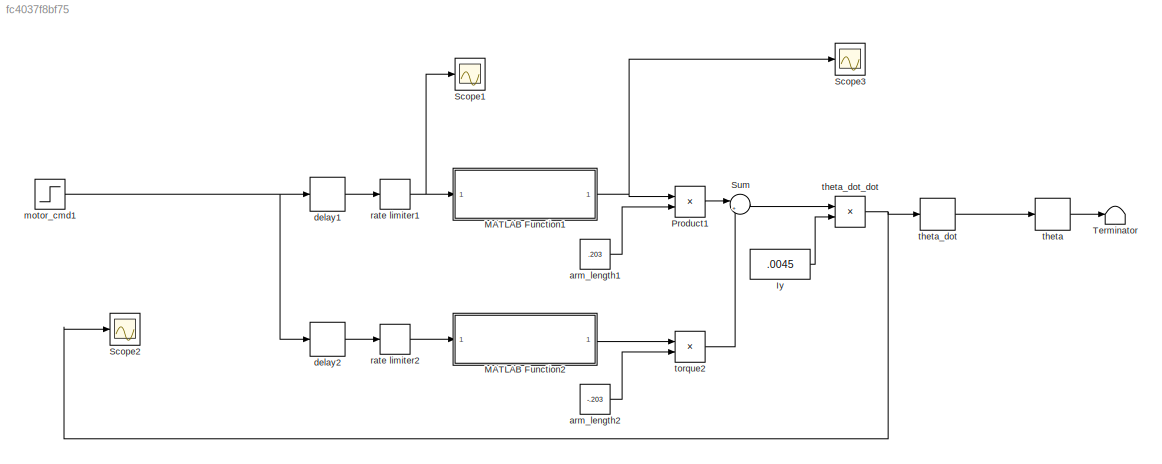
MODEL slx_fc4037f8bf75
KIND model
BLOCK [Constant] Iy
  Value = .0045
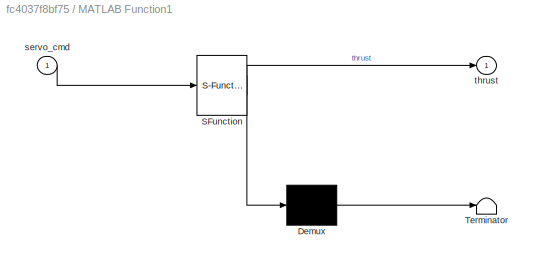
BLOCK [SubSystem] MATLAB Function1
  ErrorFcn = Stateflow.Translate.translate
  FunctionWithSeparateData = off
  MaskHideContents = off
  MinAlgLoopOccurrences = off
  Opaque = off
  PermitHierarchicalResolution = ExplicitOnly
  Ports = [1, 1]
  PropExecContextOutsideSubsystem = off
  RTWSystemCode = Auto
  RequestExecContextInheritance = off
  SFBlockType = MATLAB Function
  TreatAsAtomicUnit = on
BLOCK [Demux] MATLAB Function1/ Demux 
  Outputs = 1
  Ports = [1, 1]
BLOCK [S-Function] MATLAB Function1/ SFunction 
  EnableBusSupport = on
  FunctionName = sf_sfun
  PortCounts = [1 2]
  Ports = [1, 2]
  Tag = Stateflow S-Function quad_model_V1 1
BLOCK [Terminator] MATLAB Function1/ Terminator 
BLOCK [Inport] MATLAB Function1/servo_cmd
  IconDisplay = Port number
BLOCK [Outport] MATLAB Function1/thrust
  IconDisplay = Port number
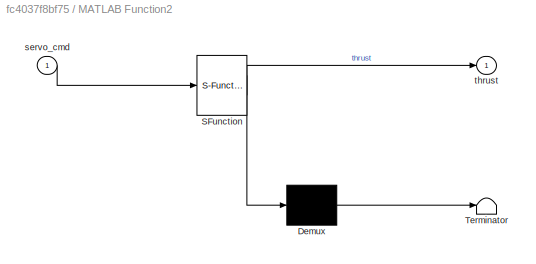
BLOCK [SubSystem] MATLAB Function2
  ErrorFcn = Stateflow.Translate.translate
  FunctionWithSeparateData = off
  MaskHideContents = off
  MinAlgLoopOccurrences = off
  Opaque = off
  PermitHierarchicalResolution = ExplicitOnly
  Ports = [1, 1]
  PropExecContextOutsideSubsystem = off
  RTWSystemCode = Auto
  RequestExecContextInheritance = off
  SFBlockType = MATLAB Function
  TreatAsAtomicUnit = on
BLOCK [Demux] MATLAB Function2/ Demux 
  Outputs = 1
  Ports = [1, 1]
BLOCK [S-Function] MATLAB Function2/ SFunction 
  EnableBusSupport = on
  FunctionName = sf_sfun
  PortCounts = [1 2]
  Ports = [1, 2]
  Tag = Stateflow S-Function quad_model_V1 2
BLOCK [Terminator] MATLAB Function2/ Terminator 
BLOCK [Inport] MATLAB Function2/servo_cmd
  IconDisplay = Port number
BLOCK [Outport] MATLAB Function2/thrust
  IconDisplay = Port number
BLOCK [Product] Product1
  InputSameDT = off
  OutDataTypeStr = Inherit: Inherit via internal rule
  Ports = [2, 1]
  RndMeth = Floor
  SaturateOnIntegerOverflow = off
BLOCK [Scope] Scope1
  DataFormat = StructureWithTime
  Floating = off
  NumInputPorts = 1
  Ports = [1]
  SampleTime = 0
  ShowLegends = off
BLOCK [Scope] Scope2
  DataFormat = StructureWithTime
  Floating = off
  NumInputPorts = 1
  Ports = [1]
  SampleTime = 0
  SaveName = ScopeData2
  ShowLegends = off
BLOCK [Scope] Scope3
  DataFormat = StructureWithTime
  Floating = off
  NumInputPorts = 1
  Ports = [1]
  SampleTime = 0
  SaveName = ScopeData1
  ShowLegends = off
BLOCK [Sum] Sum
  IconShape = round
  InputSameDT = off
  Inputs = |++
  OutDataTypeStr = Inherit: Inherit via internal rule
  Ports = [2, 1]
  SaturateOnIntegerOverflow = off
BLOCK [Terminator] Terminator
BLOCK [Constant] arm_length1
  Value = .203
BLOCK [Constant] arm_length2
  Value = -.203
BLOCK [Delay] delay1
  DelayLength = 120
  InitialCondition = 0
  InputPortMap = u0
  Ports = [1, 1]
  SampleTime = 1
BLOCK [Delay] delay2
  DelayLength = 120
  InitialCondition = 0
  InputPortMap = u0
  Ports = [1, 1]
  SampleTime = 1
BLOCK [Step] motor_cmd1
  After = 100
  SampleTime = 0
  Time = 1000
BLOCK [RateLimiter] rate limiter1
  RisingSlewLimit = 1000/300
  SampleTimeMode = inherited
BLOCK [RateLimiter] rate limiter2
  RisingSlewLimit = 1000/400
  SampleTimeMode = inherited
BLOCK [DiscreteIntegrator] theta
  ICPrevOutput = DiscIntNeverNeededParam
  ICPrevScaledInput = DiscIntNeverNeededParam
  LimitOutput = on
  LowerSaturationLimit = -90
  Ports = [1, 1]
  UpperSaturationLimit = 90
  gainval = 1/1000
BLOCK [DiscreteIntegrator] theta_dot
  ICPrevOutput = DiscIntNeverNeededParam
  ICPrevScaledInput = DiscIntNeverNeededParam
  LimitOutput = on
  LowerSaturationLimit = -30000
  Ports = [1, 1]
  UpperSaturationLimit = 30000
  gainval = 1/1000
BLOCK [Product] theta_dot_dot
  InputSameDT = off
  Inputs = */
  OutDataTypeStr = Inherit: Inherit via internal rule
  Ports = [2, 1]
  RndMeth = Floor
  SaturateOnIntegerOverflow = off
BLOCK [Product] torque2
  InputSameDT = off
  OutDataTypeStr = Inherit: Inherit via internal rule
  Ports = [2, 1]
  RndMeth = Floor
  SaturateOnIntegerOverflow = off
LINE Iy:1 -> theta_dot_dot:2
NET MATLAB Function1:1 -> Product1:1, Scope3:1
LINE MATLAB Function2:1 -> torque2:1
LINE Product1:1 -> Sum:1
LINE Sum:1 -> theta_dot_dot:1
LINE arm_length1:1 -> Product1:2
LINE arm_length2:1 -> torque2:2
LINE delay1:1 -> rate limiter1:1
LINE delay2:1 -> rate limiter2:1
NET motor_cmd1:1 -> delay1:1, delay2:1
NET rate limiter1:1 -> MATLAB Function1:1, Scope1:1
LINE rate limiter2:1 -> MATLAB Function2:1
LINE theta:1 -> Terminator:1
LINE theta_dot:1 -> theta:1
NET theta_dot_dot:1 -> Scope2:1, theta_dot:1
LINE torque2:1 -> Sum:2
note: NET lines group one-source signal fan-out (src -> all destinations, sorted); 1:1 wires keep LINE
